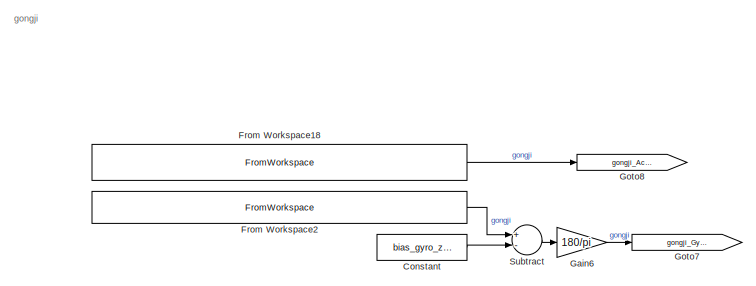
[diagram: root canvas - part 1/3, top left region]
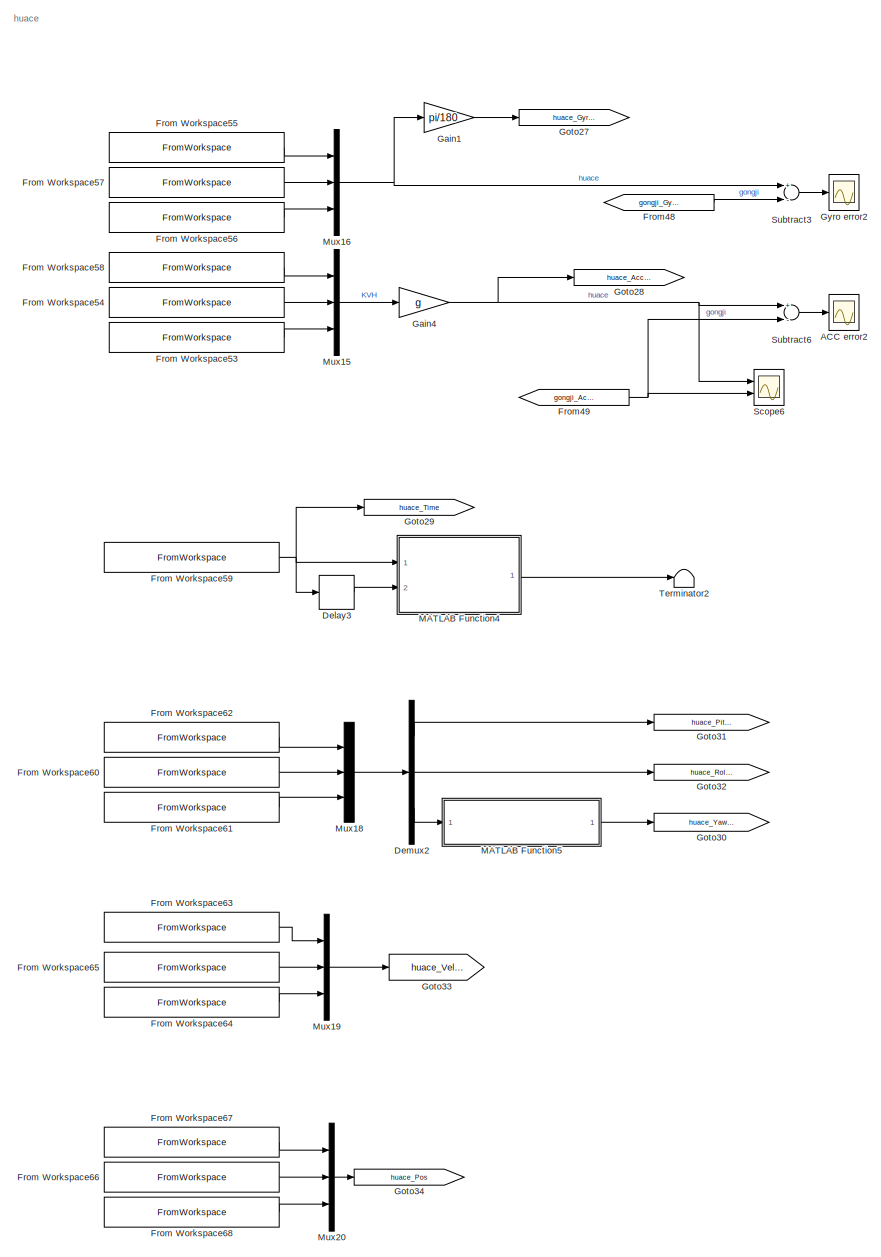
[diagram: root canvas - part 2/3, middle right region]
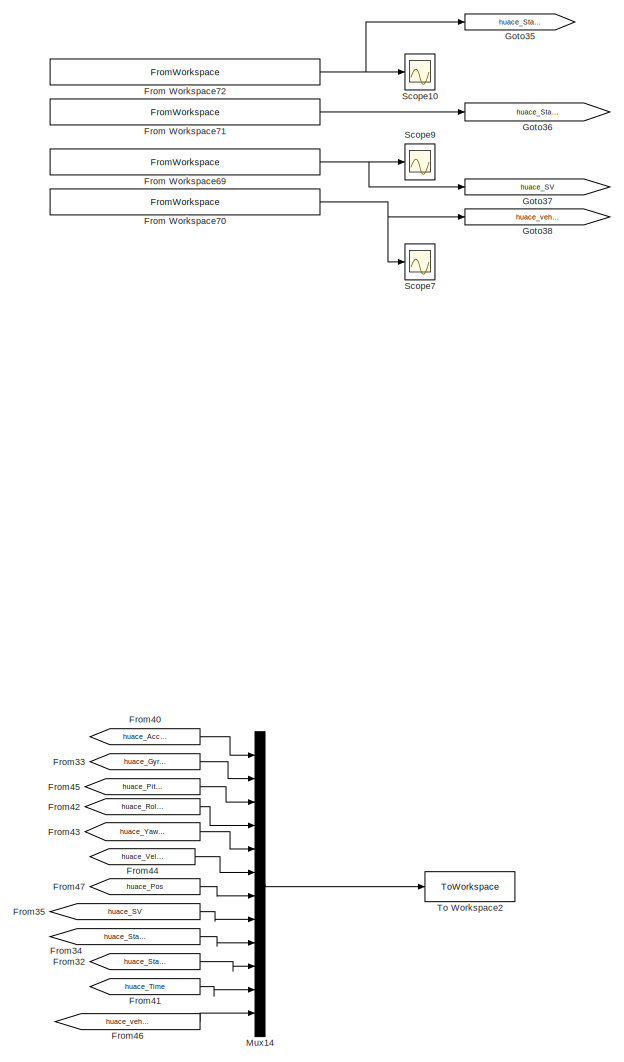
[diagram: root canvas - part 3/3, bottom right region]
MODEL slx_8b1d69305f4b
KIND model
CONFIG AbsTol = auto
CONFIG EnableMultiTasking = off
CONFIG FixedStep = 0.01
CONFIG MaxStep = 0.01
CONFIG MinStep = auto
CONFIG RelTol = 1e-3
CONFIG SampleTimeConstraint = Unconstrained
CONFIG Solver = ode3
CONFIG SolverName = ode3
CONFIG StartTime = 0.0
CONFIG StopTime = 6000
BLOCK [Scope] ACC error2
  Floating = off
  NumInputPorts = 1
  Ports = [1]
  ScopeSpecificationString = Simulink.scopes.TimeScopeBlockCfg('CurrentConfiguration', extmgr.ConfigurationSet(extmgr.Configuration('Core','General UI',true),extmgr.Configuration('Core','Source UI',true),extmgr.Configuration('Sources','WiredSimulink',true,'DataLoggingVariableName','ScopeData6','DataLoggingSaveFormat','StructureWithTime','DataLoggingDecimation','1','DataLoggingDecimateData',true),extmgr.Configuration('Visuals'...<+1621ch>
BLOCK [Constant] Constant
  Value = bias_gyro_z_gongji
BLOCK [Delay] Delay3
  DelayLength = 1
  InitialCondition = 0
  InputPortMap = u0
  Ports = [1, 1]
BLOCK [Demux] Demux2
  DisplayOption = bar
  Outputs = 3
  Ports = [1, 3]
BLOCK [FromWorkspace] From Workspace18
  Interpolate = off
  OutputAfterFinalValue = Holding final value
  VariableName = [Time,RawData_table.IMU_ACC_x,RawData_table.IMU_ACC_y,RawData_table.IMU_ACC_z]
  ZeroCross = on
BLOCK [FromWorkspace] From Workspace2
  Interpolate = off
  OutputAfterFinalValue = Holding final value
  VariableName = [Time,RawData_table.IMU_Gyro_x,RawData_table.IMU_Gyro_y,RawData_table.IMU_Gyro_z]
  ZeroCross = on
BLOCK [FromWorkspace] From Workspace53
  Interpolate = off
  OutputAfterFinalValue = Holding final value
  VariableName = [T_GPCHC,data_huace.acc_z]
  ZeroCross = on
BLOCK [FromWorkspace] From Workspace54
  Interpolate = off
  OutputAfterFinalValue = Holding final value
  VariableName = [T_GPCHC,data_huace.acc_y]
  ZeroCross = on
BLOCK [FromWorkspace] From Workspace55
  Interpolate = off
  OutputAfterFinalValue = Holding final value
  VariableName = [T_GPCHC,data_huace.gyro_x]
  ZeroCross = on
BLOCK [FromWorkspace] From Workspace56
  Interpolate = off
  OutputAfterFinalValue = Holding final value
  VariableName = [T_GPCHC,data_huace.gyro_z]
  ZeroCross = on
BLOCK [FromWorkspace] From Workspace57
  Interpolate = off
  OutputAfterFinalValue = Holding final value
  VariableName = [T_GPCHC,data_huace.gyro_y]
  ZeroCross = on
BLOCK [FromWorkspace] From Workspace58
  Interpolate = off
  OutputAfterFinalValue = Holding final value
  VariableName = [T_GPCHC,data_huace.acc_x]
  ZeroCross = on
BLOCK [FromWorkspace] From Workspace59
  Interpolate = off
  OutputAfterFinalValue = Holding final value
  VariableName = [T_GPCHC,T_GPCHC]
  ZeroCross = on
BLOCK [FromWorkspace] From Workspace60
  Interpolate = off
  OutputAfterFinalValue = Holding final value
  VariableName = [T_GPCHC,data_huace.Roll]
  ZeroCross = on
BLOCK [FromWorkspace] From Workspace61
  Interpolate = off
  OutputAfterFinalValue = Holding final value
  VariableName = [T_GPCHC,data_huace.Heading]
  ZeroCross = on
BLOCK [FromWorkspace] From Workspace62
  Interpolate = off
  OutputAfterFinalValue = Holding final value
  VariableName = [T_GPCHC,data_huace.Pitch]
  ZeroCross = on
BLOCK [FromWorkspace] From Workspace63
  Interpolate = off
  OutputAfterFinalValue = Holding final value
  VariableName = [T_GPCHC,data_huace.VE]
  ZeroCross = on
BLOCK [FromWorkspace] From Workspace64
  Interpolate = off
  OutputAfterFinalValue = Holding final value
  VariableName = [T_GPCHC,data_huace.VU]
  ZeroCross = on
BLOCK [FromWorkspace] From Workspace65
  Interpolate = off
  OutputAfterFinalValue = Holding final value
  VariableName = [T_GPCHC,data_huace.VN]
  ZeroCross = on
BLOCK [FromWorkspace] From Workspace66
  Interpolate = off
  OutputAfterFinalValue = Holding final value
  VariableName = [T_GPCHC,data_huace.Longitude]
  ZeroCross = on
BLOCK [FromWorkspace] From Workspace67
  Interpolate = off
  OutputAfterFinalValue = Holding final value
  VariableName = [T_GPCHC,data_huace.Lattitude]
  ZeroCross = on
BLOCK [FromWorkspace] From Workspace68
  Interpolate = off
  OutputAfterFinalValue = Holding final value
  VariableName = [T_GPCHC,data_huace.Altitude]
  ZeroCross = on
BLOCK [FromWorkspace] From Workspace69
  Interpolate = off
  OutputAfterFinalValue = Holding final value
  VariableName = [T_GPCHC,data_huace.SV]
  ZeroCross = on
BLOCK [FromWorkspace] From Workspace70
  Interpolate = off
  OutputAfterFinalValue = Holding final value
  VariableName = [T_GPCHC,data_huace.vehicle_speed]
  ZeroCross = on
BLOCK [FromWorkspace] From Workspace71
  Interpolate = off
  OutputAfterFinalValue = Holding final value
  VariableName = [T_GPCHC,data_huace.Status_GNSS]
  ZeroCross = on
BLOCK [FromWorkspace] From Workspace72
  Interpolate = off
  OutputAfterFinalValue = Holding final value
  VariableName = [T_GPCHC,data_huace.Status_sys]
  ZeroCross = on
BLOCK [From] From32
  GotoTag = huace_Status_sys
BLOCK [From] From33
  GotoTag = huace_Gyro_rdps
BLOCK [From] From34
  GotoTag = huace_Status_GNSS
BLOCK [From] From35
  GotoTag = huace_SV
BLOCK [From] From40
  GotoTag = huace_Acc_mpss
BLOCK [From] From41
  GotoTag = huace_Time
BLOCK [From] From42
  GotoTag = huace_Roll_deg
BLOCK [From] From43
  GotoTag = huace_Yaw_deg
BLOCK [From] From44
  GotoTag = huace_Vel_mps
BLOCK [From] From45
  GotoTag = huace_Pitch_deg
BLOCK [From] From46
  GotoTag = huace_vehicle_speed
BLOCK [From] From47
  GotoTag = huace_Pos
BLOCK [From] From48
  GotoTag = gongji_Gyro_degps
BLOCK [From] From49
  GotoTag = gongji_Acc_mpss
BLOCK [Gain] Gain1
  Gain = pi/180
  OutDataTypeStr = Inherit: Inherit via internal rule
  ParamDataTypeStr = Inherit: Inherit via internal rule
  SaturateOnIntegerOverflow = off
BLOCK [Gain] Gain4
  Gain = g
  OutDataTypeStr = Inherit: Inherit via internal rule
  ParamDataTypeStr = Inherit: Inherit via internal rule
  SaturateOnIntegerOverflow = off
BLOCK [Gain] Gain6
  Gain = 180/pi
  OutDataTypeStr = Inherit: Inherit via internal rule
  ParamDataTypeStr = Inherit: Inherit via internal rule
  SaturateOnIntegerOverflow = off
BLOCK [Goto] Goto27
  GotoTag = huace_Gyro_rdps
BLOCK [Goto] Goto28
  GotoTag = huace_Acc_mpss
BLOCK [Goto] Goto29
  GotoTag = huace_Time
BLOCK [Goto] Goto30
  GotoTag = huace_Yaw_deg
BLOCK [Goto] Goto31
  GotoTag = huace_Pitch_deg
BLOCK [Goto] Goto32
  GotoTag = huace_Roll_deg
BLOCK [Goto] Goto33
  GotoTag = huace_Vel_mps
BLOCK [Goto] Goto34
  GotoTag = huace_Pos
BLOCK [Goto] Goto35
  GotoTag = huace_Status_sys
BLOCK [Goto] Goto36
  GotoTag = huace_Status_GNSS
BLOCK [Goto] Goto37
  GotoTag = huace_SV
BLOCK [Goto] Goto38
  GotoTag = huace_vehicle_speed
BLOCK [Goto] Goto7
  GotoTag = gongji_Gyro_degps
BLOCK [Goto] Goto8
  GotoTag = gongji_Acc_mpss
BLOCK [Scope] Gyro error2
  Floating = off
  NumInputPorts = 1
  Ports = [1]
  ScopeSpecificationString = Simulink.scopes.TimeScopeBlockCfg('CurrentConfiguration', extmgr.ConfigurationSet(extmgr.Configuration('Core','General UI',true),extmgr.Configuration('Core','Source UI',true),extmgr.Configuration('Sources','WiredSimulink',true,'DataLoggingVariableName','ScopeData7','DataLoggingSaveFormat','StructureWithTime','DataLoggingDecimation','1','DataLoggingDecimateData',true),extmgr.Configuration('Visuals'...<+1704ch>
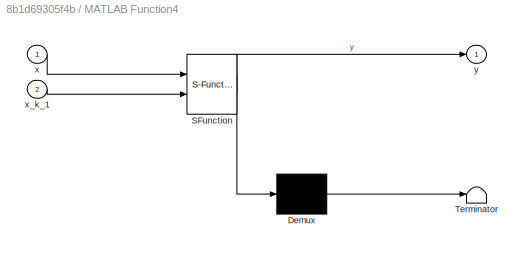
BLOCK [SubSystem] MATLAB Function4
  ErrorFcn = Stateflow.Translate.translate
  PermitHierarchicalResolution = ExplicitOnly
  Ports = [2, 1]
  RequestExecContextInheritance = off
  SFBlockType = MATLAB Function
  TreatAsAtomicUnit = on
BLOCK [Demux] MATLAB Function4/ Demux 
  Outputs = 1
  Ports = [1, 1]
BLOCK [S-Function] MATLAB Function4/ SFunction 
  EnableBusSupport = on
  FunctionName = sf_sfun
  PortCounts = [2 2]
  Ports = [2, 2]
  SFcnIsStateOwnerBlock = off
  SFunctionDeploymentMode = off
  Tag = Stateflow S-Function 3
BLOCK [Terminator] MATLAB Function4/ Terminator 
BLOCK [Inport] MATLAB Function4/x
  IconDisplay = Port number
BLOCK [Inport] MATLAB Function4/x_k_1
  IconDisplay = Port number
  Port = 2
BLOCK [Outport] MATLAB Function4/y
  IconDisplay = Port number
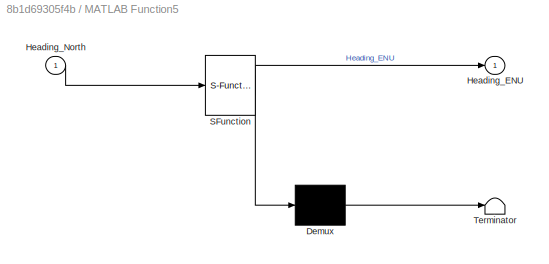
BLOCK [SubSystem] MATLAB Function5
  ErrorFcn = Stateflow.Translate.translate
  PermitHierarchicalResolution = ExplicitOnly
  Ports = [1, 1]
  RequestExecContextInheritance = off
  SFBlockType = MATLAB Function
  TreatAsAtomicUnit = on
BLOCK [Demux] MATLAB Function5/ Demux 
  Outputs = 1
  Ports = [1, 1]
BLOCK [S-Function] MATLAB Function5/ SFunction 
  EnableBusSupport = on
  FunctionName = sf_sfun
  PortCounts = [1 2]
  Ports = [1, 2]
  SFcnIsStateOwnerBlock = off
  SFunctionDeploymentMode = off
  Tag = Stateflow S-Function 4
BLOCK [Terminator] MATLAB Function5/ Terminator 
BLOCK [Outport] MATLAB Function5/Heading_ENU
  IconDisplay = Port number
BLOCK [Inport] MATLAB Function5/Heading_North
  IconDisplay = Port number
BLOCK [Mux] Mux14
  DisplayOption = bar
  Inputs = 12
  Ports = [12, 1]
BLOCK [Mux] Mux15
  DisplayOption = bar
  Inputs = 3
  Ports = [3, 1]
BLOCK [Mux] Mux16
  DisplayOption = bar
  Inputs = 3
  Ports = [3, 1]
BLOCK [Mux] Mux18
  DisplayOption = bar
  Inputs = 3
  Ports = [3, 1]
BLOCK [Mux] Mux19
  DisplayOption = bar
  Inputs = 3
  Ports = [3, 1]
BLOCK [Mux] Mux20
  DisplayOption = bar
  Inputs = 3
  Ports = [3, 1]
BLOCK [Scope] Scope10
  Floating = off
  NumInputPorts = 1
  Ports = [1]
  ScopeSpecificationString = Simulink.scopes.TimeScopeBlockCfg('CurrentConfiguration', extmgr.ConfigurationSet(extmgr.Configuration('Core','General UI',true),extmgr.Configuration('Core','Source UI',true),extmgr.Configuration('Sources','WiredSimulink',true,'DataLoggingVariableName','ScopeData9','DataLoggingSaveFormat','StructureWithTime','DataLoggingDecimation','1','DataLoggingDecimateData',true),extmgr.Configuration('Visuals'...<+1813ch>
BLOCK [Scope] Scope6
  Floating = off
  NumInputPorts = 2
  Ports = [2]
  ScopeSpecificationString = Simulink.scopes.TimeScopeBlockCfg('CurrentConfiguration', extmgr.ConfigurationSet(extmgr.Configuration('Core','General UI',true),extmgr.Configuration('Core','Source UI',true),extmgr.Configuration('Sources','WiredSimulink',true,'DataLoggingVariableName','ScopeData8','DataLoggingSaveFormat','StructureWithTime','DataLoggingDecimation','1','DataLoggingDecimateData',true),extmgr.Configuration('Visuals'...<+1722ch>
BLOCK [Scope] Scope7
  Floating = off
  NumInputPorts = 1
  Ports = [1]
  ScopeSpecificationString = Simulink.scopes.TimeScopeBlockCfg('CurrentConfiguration', extmgr.ConfigurationSet(extmgr.Configuration('Core','General UI',true),extmgr.Configuration('Core','Source UI',true),extmgr.Configuration('Sources','WiredSimulink',true,'DataLoggingVariableName','ScopeData10','DataLoggingSaveFormat','StructureWithTime','DataLoggingDecimation','1','DataLoggingDecimateData',true),extmgr.Configuration('Visuals...<+1776ch>
BLOCK [Scope] Scope9
  Floating = off
  NumInputPorts = 1
  Ports = [1]
  ScopeSpecificationString = Simulink.scopes.TimeScopeBlockCfg('CurrentConfiguration', extmgr.ConfigurationSet(extmgr.Configuration('Core','General UI',true),extmgr.Configuration('Core','Source UI',true),extmgr.Configuration('Sources','WiredSimulink',true,'DataLoggingVariableName','ScopeData11','DataLoggingSaveFormat','StructureWithTime','DataLoggingDecimation','1','DataLoggingDecimateData',true),extmgr.Configuration('Visuals...<+1776ch>
BLOCK [Sum] Subtract
  InputSameDT = off
  Inputs = +-
  OutDataTypeStr = Inherit: Inherit via internal rule
  Ports = [2, 1]
  SaturateOnIntegerOverflow = off
BLOCK [Sum] Subtract3
  InputSameDT = off
  Inputs = +-
  OutDataTypeStr = Inherit: Inherit via internal rule
  Ports = [2, 1]
  SaturateOnIntegerOverflow = off
BLOCK [Sum] Subtract6
  InputSameDT = off
  Inputs = +-
  OutDataTypeStr = Inherit: Inherit via internal rule
  Ports = [2, 1]
  SaturateOnIntegerOverflow = off
BLOCK [Terminator] Terminator2
BLOCK [ToWorkspace] To Workspace2
  FixptAsFi = on
  MaxDataPoints = inf
  Ports = [1]
  SampleTime = -1
  SaveFormat = Structure With Time
  VariableName = huace_gongji
ANNOTATION (root): gongji
ANNOTATION (root): huace
LINE Constant:1 -> Subtract:2
LINE Delay3:1 -> MATLAB Function4:2
LINE Demux2:1 -> Goto31:1
LINE Demux2:2 -> Goto32:1
LINE Demux2:3 -> MATLAB Function5:1
LINE From Workspace18:1 -> Goto8:1
LINE From Workspace2:1 -> Subtract:1
LINE From Workspace53:1 -> Mux15:3
LINE From Workspace54:1 -> Mux15:2
LINE From Workspace55:1 -> Mux16:1
LINE From Workspace56:1 -> Mux16:3
LINE From Workspace57:1 -> Mux16:2
LINE From Workspace58:1 -> Mux15:1
NET From Workspace59:1 -> Delay3:1, Goto29:1, MATLAB Function4:1
LINE From Workspace60:1 -> Mux18:2
LINE From Workspace61:1 -> Mux18:3
LINE From Workspace62:1 -> Mux18:1
LINE From Workspace63:1 -> Mux19:1
LINE From Workspace64:1 -> Mux19:3
LINE From Workspace65:1 -> Mux19:2
LINE From Workspace66:1 -> Mux20:2
LINE From Workspace67:1 -> Mux20:1
LINE From Workspace68:1 -> Mux20:3
NET From Workspace69:1 -> Goto37:1, Scope9:1
NET From Workspace70:1 -> Goto38:1, Scope7:1
LINE From Workspace71:1 -> Goto36:1
NET From Workspace72:1 -> Goto35:1, Scope10:1
LINE From32:1 -> Mux14:10
LINE From33:1 -> Mux14:2
LINE From34:1 -> Mux14:9
LINE From35:1 -> Mux14:8
LINE From40:1 -> Mux14:1
LINE From41:1 -> Mux14:11
LINE From42:1 -> Mux14:4
LINE From43:1 -> Mux14:5
LINE From44:1 -> Mux14:6
LINE From45:1 -> Mux14:3
LINE From46:1 -> Mux14:12
LINE From47:1 -> Mux14:7
LINE From48:1 -> Subtract3:2
NET From49:1 -> Scope6:2, Subtract6:2
LINE Gain1:1 -> Goto27:1
NET Gain4:1 -> Goto28:1, Scope6:1, Subtract6:1
LINE Gain6:1 -> Goto7:1
LINE MATLAB Function4:1 -> Terminator2:1
LINE MATLAB Function5:1 -> Goto30:1
LINE Mux14:1 -> To Workspace2:1
LINE Mux15:1 -> Gain4:1
NET Mux16:1 -> Gain1:1, Subtract3:1
LINE Mux18:1 -> Demux2:1
LINE Mux19:1 -> Goto33:1
LINE Mux20:1 -> Goto34:1
LINE Subtract3:1 -> Gyro error2:1
LINE Subtract6:1 -> ACC error2:1
LINE Subtract:1 -> Gain6:1
note: NET lines group one-source signal fan-out (src -> all destinations, sorted); 1:1 wires keep LINE
CHART MATLAB Function4 states=1 transitions=1
  STATE_LABEL 'eML_blk_kernel()'
  STATE_LABEL 'SCRIPT:\nfunction y  = fcn(x,x_k_1)\n    if x ~= x_k_1\n        y = uint8(1);\n    else\n        y = uint8(0);\n    end\nend'
CHART MATLAB Function5 states=1 transitions=1
  STATE_LABEL 'eML_blk_kernel()'
  STATE_LABEL 'SCRIPT:\nfunction Heading_ENU = fcn(Heading_North)\n% Heading_ENU:以北为零顺时针为正0-360°\n% Heading_North:以北为零逆时针为正-180-180°\n\n% Heading_North = Heading_North + 0.5 + 3.8;\nif Heading_North <= 180\n    Heading_ENU = 0 - Heading_North;\nelse\n    Heading_ENU = 360 - Heading_North;\nend'
